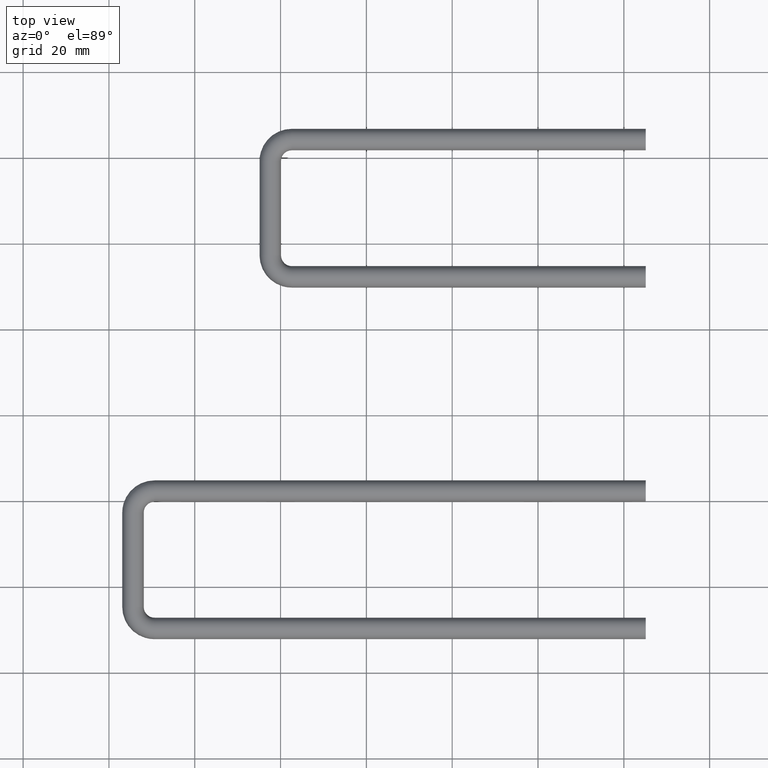
[diagram: clean part render]
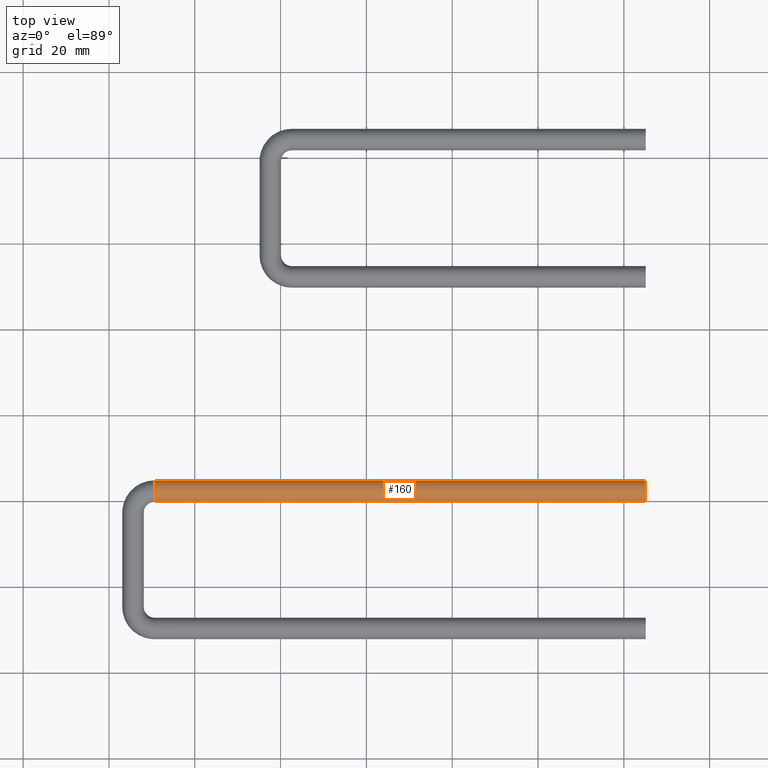
[diagram: same view with one face highlighted and labeled with its STEP entity id]
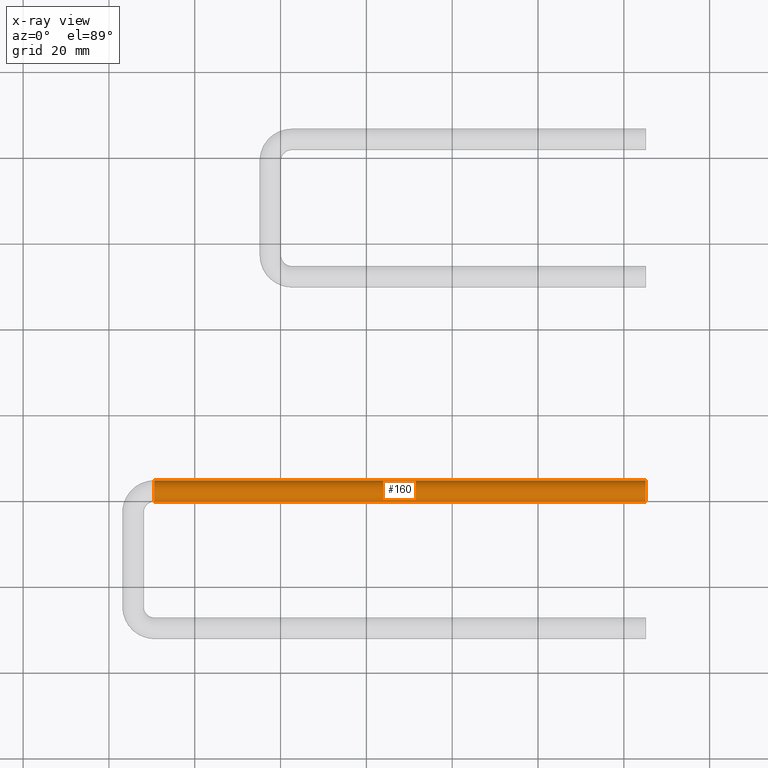
[diagram: x-ray of the same camera — body ghosted, the highlighted face saturated]
A machine part, top view. The second image highlights one B-rep face of the part: STEP entity #160.
The next image is the same camera in x-ray: the body ghosted, the highlighted face saturated — about 0% of this face is hidden behind the body in this view.
In plain terms, the highlighted cylindrical surface (bore or boss wall) has radius 2.5 mm, axis along (-1, -0, 0).
Its self-contained STEP definition (entity closure, byte-faithful):
#44=FACE_BOUND('',#80,.T.);
#56=FACE_OUTER_BOUND('',#79,.T.);
#79=EDGE_LOOP('',(#139));
#80=EDGE_LOOP('',(#140));
#93=CIRCLE('',#188,2.5);
#94=CIRCLE('',#190,2.5);
#105=VERTEX_POINT('',#291);
#106=VERTEX_POINT('',#294);
#117=EDGE_CURVE('',#105,#105,#93,.T.);
#118=EDGE_CURVE('',#106,#106,#94,.T.);
#139=ORIENTED_EDGE('',*,*,#117,.F.);
#140=ORIENTED_EDGE('',*,*,#118,.T.);
#148=CYLINDRICAL_SURFACE('',#189,2.5);
#160=ADVANCED_FACE('',(#56,#44),#148,.T.);
#188=AXIS2_PLACEMENT_3D('',#292,#242,#243);
#189=AXIS2_PLACEMENT_3D('',#293,#244,#245);
#190=AXIS2_PLACEMENT_3D('',#295,#246,#247);
#242=DIRECTION('center_axis',(-1.,-2.32710502978199E-16,0.));
#243=DIRECTION('ref_axis',(2.32710502978199E-16,-1.,0.));
#244=DIRECTION('center_axis',(-1.,-2.32710502978199E-16,0.));
#245=DIRECTION('ref_axis',(2.32710502978199E-16,-1.,0.));
#246=DIRECTION('center_axis',(-1.,-2.32710502978199E-16,0.));
#247=DIRECTION('ref_axis',(2.32710502978199E-16,-1.,0.));
#291=CARTESIAN_POINT('',(-54.75,18.5,3.06161699786838E-16));
#292=CARTESIAN_POINT('Origin',(-54.75,16.,0.));
#293=CARTESIAN_POINT('Origin',(59.75,16.,0.));
#294=CARTESIAN_POINT('',(59.75,18.5,3.06161699786838E-16));
#295=CARTESIAN_POINT('Origin',(59.75,16.,0.));